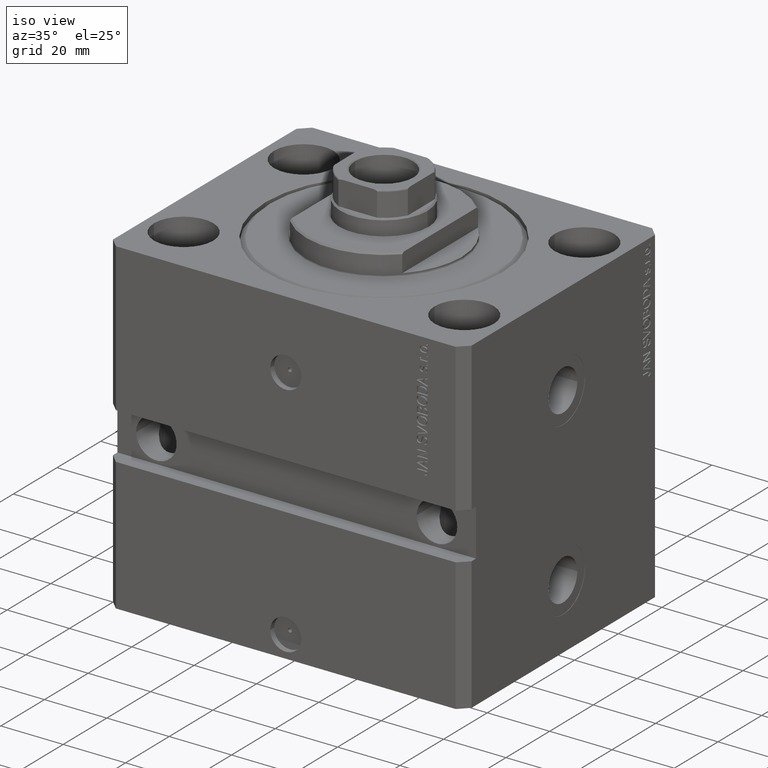
[diagram: clean part render]
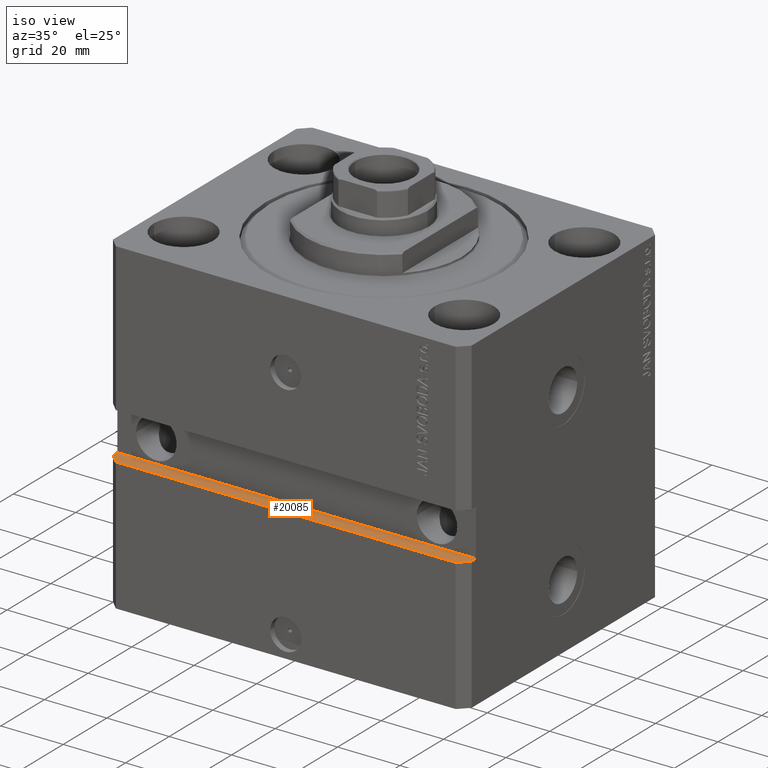
[diagram: same view with one face highlighted and labeled with its STEP entity id]
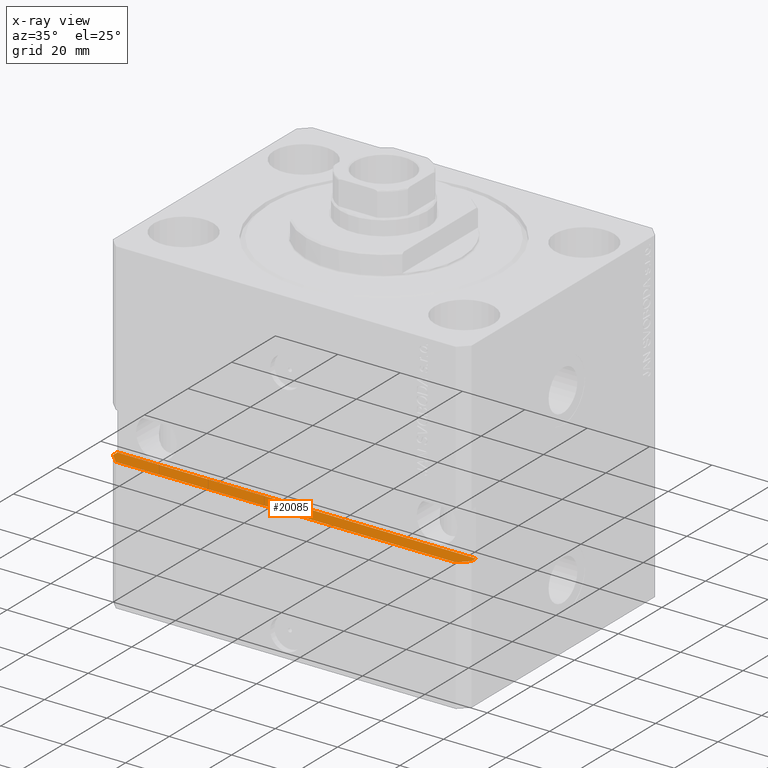
[diagram: x-ray of the same camera — body ghosted, the highlighted face saturated]
A machine part, iso view. The second image highlights one B-rep face of the part: STEP entity #20085.
The next image is the same camera in x-ray: the body ghosted, the highlighted face saturated — about 0% of this face is hidden behind the body in this view.
In plain terms, the highlighted planar face has unit normal (0, 0, -1).
Its self-contained STEP definition (entity closure, byte-faithful):
#674 = DIRECTION ( 'NONE',  ( 1.000000000000000000, 1.206764157201257045E-16, 0.000000000000000000 ) ) ;
#2468 = DIRECTION ( 'NONE',  ( -1.000000000000000000, 0.000000000000000000, -0.000000000000000000 ) ) ;
#2850 = VECTOR ( 'NONE', #45267, 1000.000000000000114 ) ;
#3479 = EDGE_CURVE ( 'NONE', #10400, #6501, #15792, .T. ) ;
#3486 = AXIS2_PLACEMENT_3D ( 'NONE', #41509, #38026, #2468 ) ;
#4648 = ORIENTED_EDGE ( 'NONE', *, *, #12475, .T. ) ;
#5496 = LINE ( 'NONE', #8758, #23358 ) ;
#6501 = VERTEX_POINT ( 'NONE', #9578 ) ;
#6696 = DIRECTION ( 'NONE',  ( 1.000000000000000000, 1.206764157201257045E-16, 0.000000000000000000 ) ) ;
#7078 = ORIENTED_EDGE ( 'NONE', *, *, #37227, .T. ) ;
#8758 = CARTESIAN_POINT ( 'NONE',  ( -57.50000000000000711, -40.00000000000000000, -62.50000000000000000 ) ) ;
#8907 = CARTESIAN_POINT ( 'NONE',  ( 57.50000000000000711, -39.99999999999998579, -62.50000000000000000 ) ) ;
#9145 = LINE ( 'NONE', #44696, #12855 ) ;
#9578 = CARTESIAN_POINT ( 'NONE',  ( -54.50000000000000711, -45.00000000000000000, -62.50000000000000000 ) ) ;
#9582 = EDGE_LOOP ( 'NONE', ( #7078, #32635, #21577, #4648, #45148, #34157 ) ) ;
#10400 = VERTEX_POINT ( 'NONE', #15227 ) ;
#11465 = VECTOR ( 'NONE', #674, 1000.000000000000000 ) ;
#12475 = EDGE_CURVE ( 'NONE', #42664, #10400, #5496, .T. ) ;
#12855 = VECTOR ( 'NONE', #26834, 1000.000000000000114 ) ;
#13007 = CARTESIAN_POINT ( 'NONE',  ( 57.50000000000000711, -39.99999999999998579, -62.50000000000000000 ) ) ;
#13200 = EDGE_CURVE ( 'NONE', #6501, #21156, #39246, .T. ) ;
#13234 = LINE ( 'NONE', #13007, #18175 ) ;
#14725 = VECTOR ( 'NONE', #6696, 1000.000000000000000 ) ;
#15227 = CARTESIAN_POINT ( 'NONE',  ( -57.50000000000000711, -42.00000000000000711, -62.50000000000000000 ) ) ;
#15792 = LINE ( 'NONE', #28537, #2850 ) ;
#17929 = VERTEX_POINT ( 'NONE', #30909 ) ;
#18175 = VECTOR ( 'NONE', #35077, 1000.000000000000000 ) ;
#20085 = ADVANCED_FACE ( 'NONE', ( #27123 ), #23875, .F. ) ;
#21156 = VERTEX_POINT ( 'NONE', #44028 ) ;
#21577 = ORIENTED_EDGE ( 'NONE', *, *, #22732, .F. ) ;
#22732 = EDGE_CURVE ( 'NONE', #42664, #30089, #35058, .T. ) ;
#23358 = VECTOR ( 'NONE', #37574, 1000.000000000000000 ) ;
#23413 = CARTESIAN_POINT ( 'NONE',  ( -57.50000000000000711, -40.00000000000000000, -62.50000000000000000 ) ) ;
#23875 = PLANE ( 'NONE',  #3486 ) ;
#26834 = DIRECTION ( 'NONE',  ( 0.7071067811865483499, 0.7071067811865465735, 0.000000000000000000 ) ) ;
#27123 = FACE_OUTER_BOUND ( 'NONE', #9582, .T. ) ;
#28095 = CARTESIAN_POINT ( 'NONE',  ( -57.50000000000000711, -40.00000000000000000, -62.50000000000000000 ) ) ;
#28537 = CARTESIAN_POINT ( 'NONE',  ( -57.50000000000000711, -42.00000000000000711, -62.50000000000000000 ) ) ;
#30089 = VERTEX_POINT ( 'NONE', #8907 ) ;
#30909 = CARTESIAN_POINT ( 'NONE',  ( 57.50000000000000711, -41.99999999999998579, -62.50000000000000000 ) ) ;
#32635 = ORIENTED_EDGE ( 'NONE', *, *, #44566, .F. ) ;
#34157 = ORIENTED_EDGE ( 'NONE', *, *, #13200, .T. ) ;
#35058 = LINE ( 'NONE', #28095, #14725 ) ;
#35077 = DIRECTION ( 'NONE',  ( 1.176083712526788232E-16, -1.000000000000000000, -0.000000000000000000 ) ) ;
#37227 = EDGE_CURVE ( 'NONE', #21156, #17929, #9145, .T. ) ;
#37574 = DIRECTION ( 'NONE',  ( 1.176083712526788232E-16, -1.000000000000000000, -0.000000000000000000 ) ) ;
#38026 = DIRECTION ( 'NONE',  ( 0.000000000000000000, 0.000000000000000000, -1.000000000000000000 ) ) ;
#39246 = LINE ( 'NONE', #43421, #11465 ) ;
#41509 = CARTESIAN_POINT ( 'NONE',  ( -57.50000000000000711, -40.00000000000000000, -62.50000000000000000 ) ) ;
#42664 = VERTEX_POINT ( 'NONE', #23413 ) ;
#43421 = CARTESIAN_POINT ( 'NONE',  ( -57.50000000000000711, -45.00000000000000000, -62.50000000000000000 ) ) ;
#44028 = CARTESIAN_POINT ( 'NONE',  ( 54.49999999999997868, -44.99999999999998579, -62.50000000000000000 ) ) ;
#44566 = EDGE_CURVE ( 'NONE', #30089, #17929, #13234, .T. ) ;
#44696 = CARTESIAN_POINT ( 'NONE',  ( 54.50000000000000711, -44.99999999999998579, -62.50000000000000000 ) ) ;
#45148 = ORIENTED_EDGE ( 'NONE', *, *, #3479, .T. ) ;
#45267 = DIRECTION ( 'NONE',  ( 0.7071067811865491270, -0.7071067811865459074, 0.000000000000000000 ) ) ;